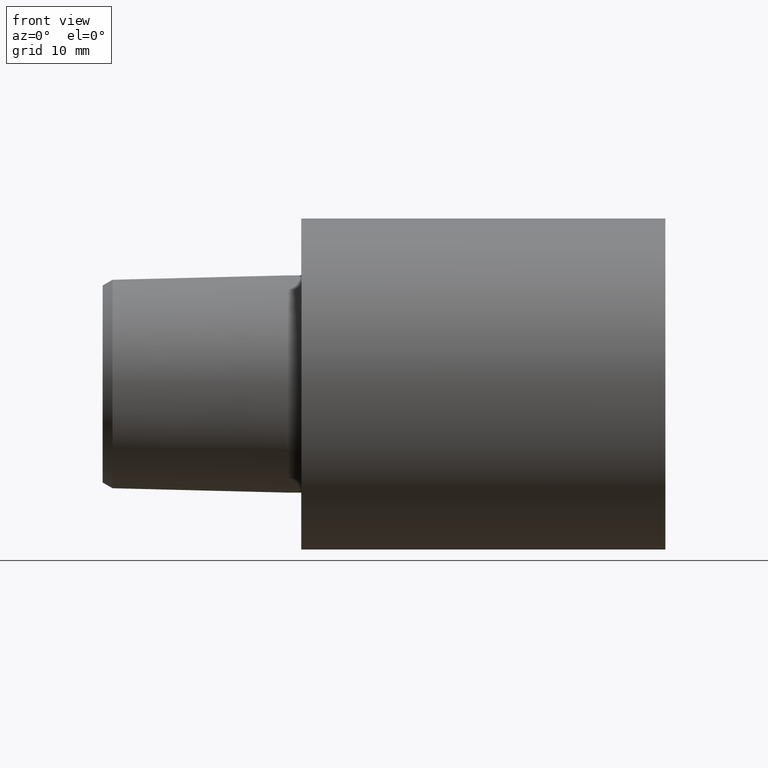
[diagram: clean part render]
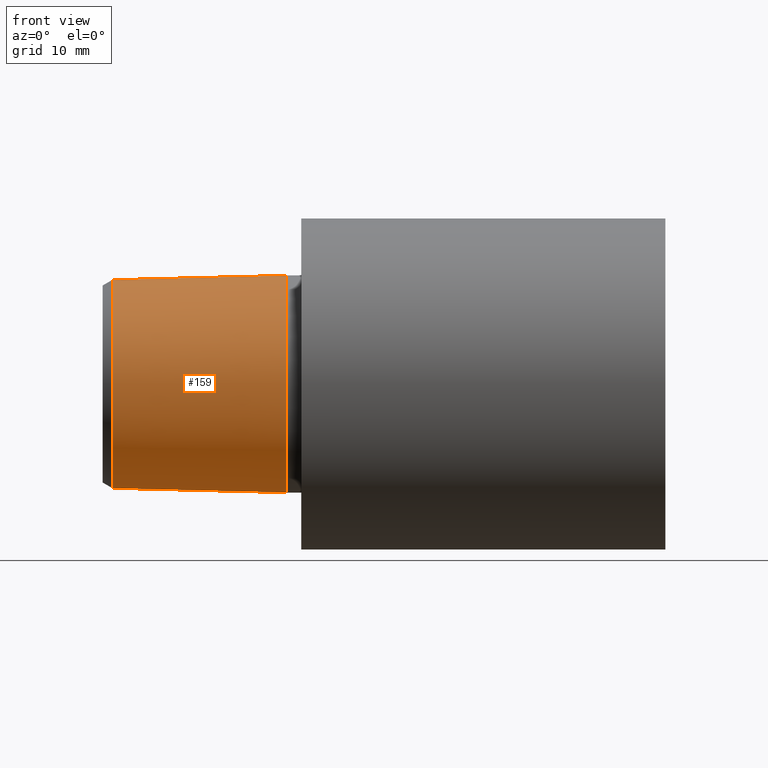
[diagram: same view with one face highlighted and labeled with its STEP entity id]
A machine part, front view. The second image highlights one B-rep face of the part: STEP entity #159.
In plain terms, the highlighted conical surface has half-angle 1.432 deg.
Its self-contained STEP definition (entity closure, byte-faithful):
#4 = LINE ( 'NONE', #271, #139 ) ;
#16 = CARTESIAN_POINT ( 'NONE',  ( -2.199937517756059613, 0.000000000000000000, -16.40000330327199762 ) ) ;
#17 = ORIENTED_EDGE ( 'NONE', *, *, #52, .F. ) ;
#19 = DIRECTION ( 'NONE',  ( 0.000000000000000000, 0.000000000000000000, -1.000000000000000000 ) ) ;
#21 = DIRECTION ( 'NONE',  ( 1.000000000000000000, 0.000000000000000000, 0.000000000000000000 ) ) ;
#37 = DIRECTION ( 'NONE',  ( 0.000000000000000000, 0.000000000000000000, -1.000000000000000000 ) ) ;
#44 = DIRECTION ( 'NONE',  ( 1.000000000000000000, 0.000000000000000000, 0.000000000000000000 ) ) ;
#52 = EDGE_CURVE ( 'NONE', #297, #210, #4, .T. ) ;
#69 = CIRCLE ( 'NONE', #336, 15.74244386394270734 ) ;
#70 = CARTESIAN_POINT ( 'NONE',  ( -2.199937517756059613, 0.000000000000000000, -16.40000330327199762 ) ) ;
#73 = LINE ( 'NONE', #16, #235 ) ;
#95 = CARTESIAN_POINT ( 'NONE',  ( -28.49999997092999848, 1.927893348873434490E-15, 15.74244386394270734 ) ) ;
#99 = ORIENTED_EDGE ( 'NONE', *, *, #187, .T. ) ;
#120 = EDGE_LOOP ( 'NONE', ( #17, #99, #298, #263 ) ) ;
#126 = FACE_OUTER_BOUND ( 'NONE', #120, .T. ) ;
#139 = VECTOR ( 'NONE', #329, 999.9999999999998863 ) ;
#146 = CARTESIAN_POINT ( 'NONE',  ( -2.199937517756059613, 0.000000000000000000, 0.000000000000000000 ) ) ;
#147 = CARTESIAN_POINT ( 'NONE',  ( -28.49999997092999848, 0.000000000000000000, -15.74244386394270734 ) ) ;
#148 = DIRECTION ( 'NONE',  ( 0.9996875914402667540, 0.000000000000000000, -0.02499438977767824352 ) ) ;
#159 = ADVANCED_FACE ( 'NONE', ( #126 ), #305, .T. ) ;
#163 = EDGE_CURVE ( 'NONE', #210, #245, #335, .T. ) ;
#174 = AXIS2_PLACEMENT_3D ( 'NONE', #308, #44, #37 ) ;
#177 = DIRECTION ( 'NONE',  ( 1.000000000000000000, 0.000000000000000000, 0.000000000000000000 ) ) ;
#187 = EDGE_CURVE ( 'NONE', #297, #319, #69, .T. ) ;
#199 = DIRECTION ( 'NONE',  ( 0.000000000000000000, 0.000000000000000000, -1.000000000000000000 ) ) ;
#210 = VERTEX_POINT ( 'NONE', #288 ) ;
#217 = AXIS2_PLACEMENT_3D ( 'NONE', #146, #177, #19 ) ;
#224 = CARTESIAN_POINT ( 'NONE',  ( -28.49999997092999848, 0.000000000000000000, 0.000000000000000000 ) ) ;
#235 = VECTOR ( 'NONE', #148, 999.9999999999998863 ) ;
#245 = VERTEX_POINT ( 'NONE', #70 ) ;
#263 = ORIENTED_EDGE ( 'NONE', *, *, #163, .F. ) ;
#271 = CARTESIAN_POINT ( 'NONE',  ( -2.199937517756059613, 2.008421155135807723E-15, 16.40000330327199762 ) ) ;
#279 = EDGE_CURVE ( 'NONE', #319, #245, #73, .T. ) ;
#288 = CARTESIAN_POINT ( 'NONE',  ( -2.199937517756059613, 2.008421155135807723E-15, 16.40000330327199762 ) ) ;
#297 = VERTEX_POINT ( 'NONE', #95 ) ;
#298 = ORIENTED_EDGE ( 'NONE', *, *, #279, .T. ) ;
#305 = CONICAL_SURFACE ( 'NONE', #174, 16.40000330327199762, 0.02499699292341668252 ) ;
#308 = CARTESIAN_POINT ( 'NONE',  ( -2.199937517756059613, 0.000000000000000000, 0.000000000000000000 ) ) ;
#319 = VERTEX_POINT ( 'NONE', #147 ) ;
#329 = DIRECTION ( 'NONE',  ( 0.9996875914402667540, 3.060929943787498310E-18, 0.02499438977767824352 ) ) ;
#335 = CIRCLE ( 'NONE', #217, 16.40000330327199762 ) ;
#336 = AXIS2_PLACEMENT_3D ( 'NONE', #224, #21, #199 ) ;